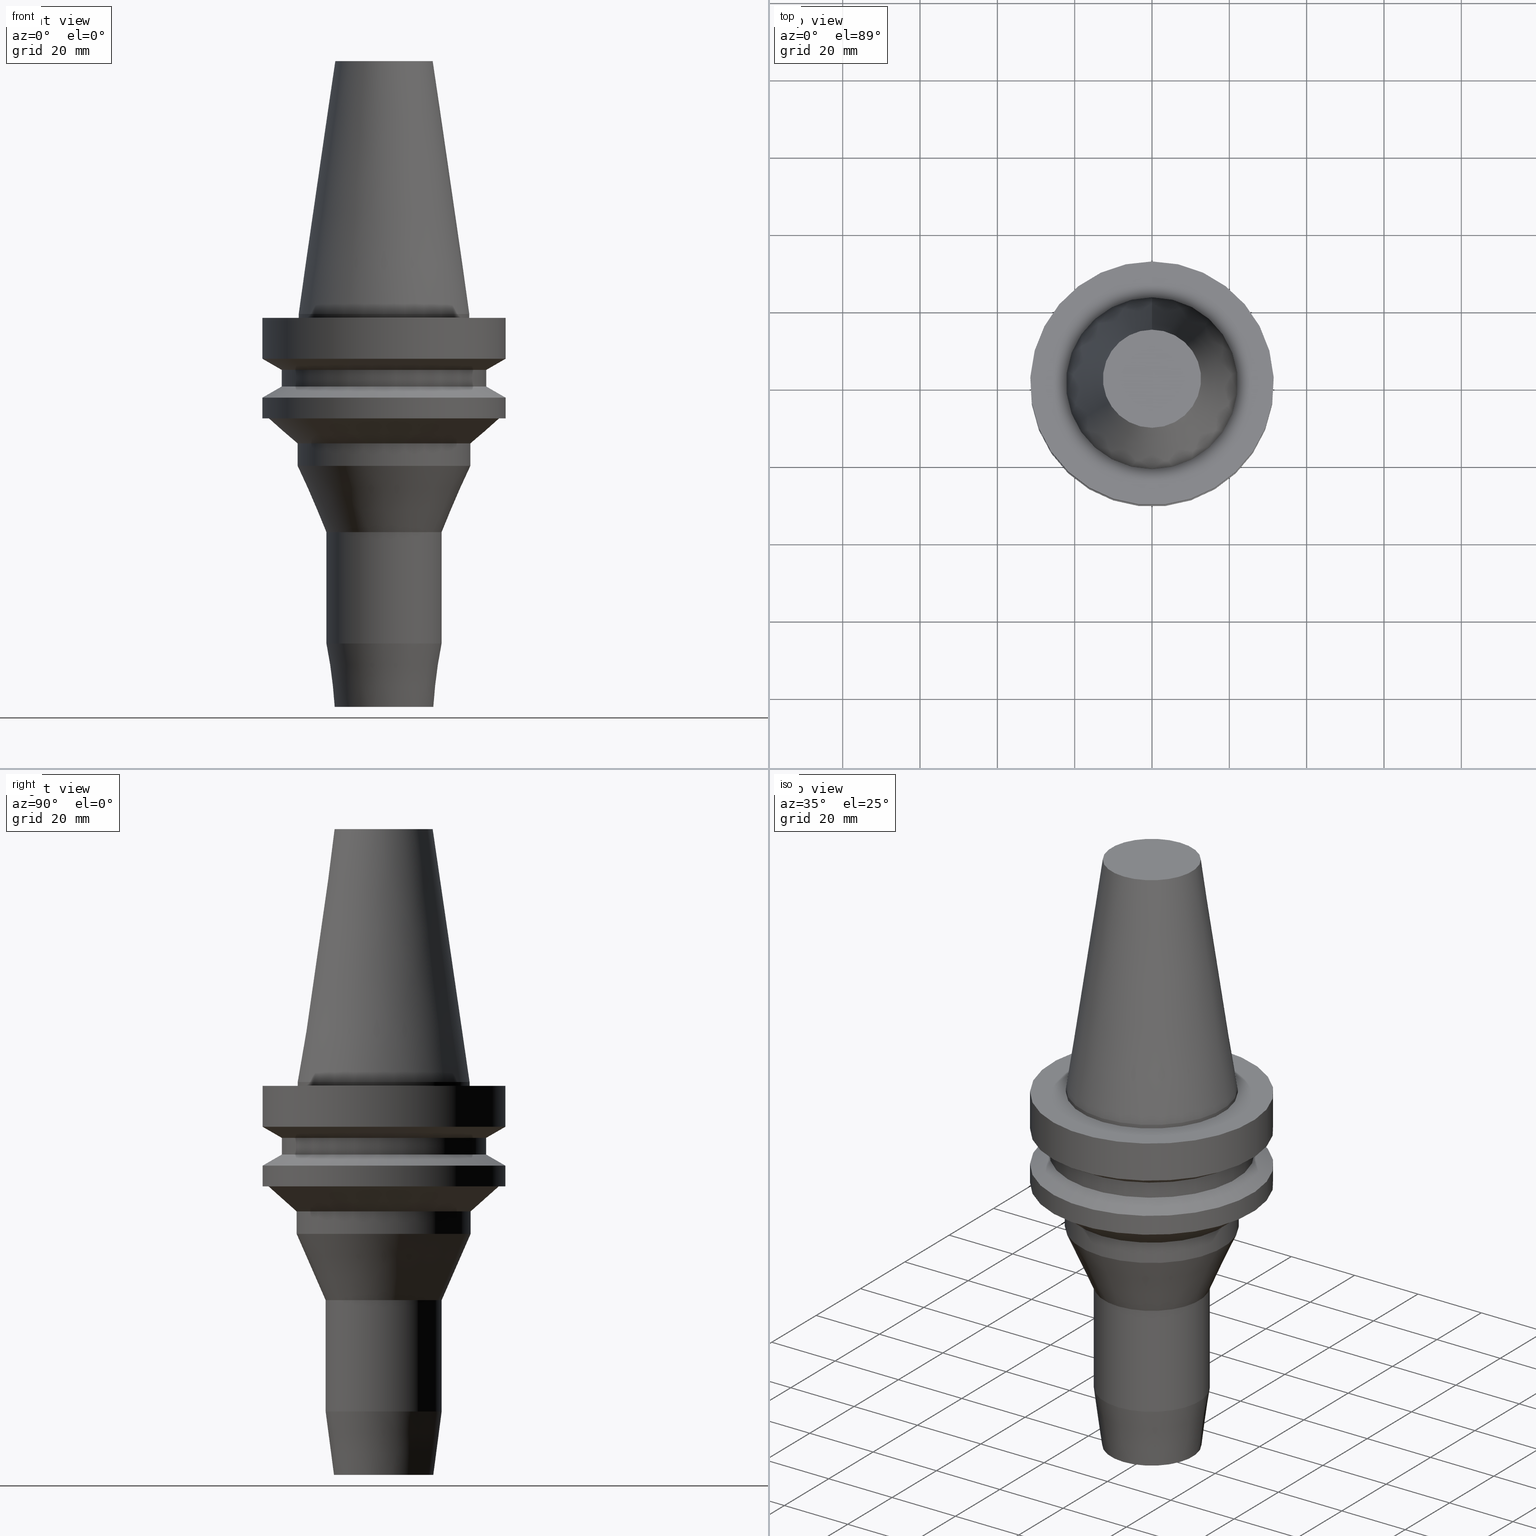
[diagram: canonical four-view strip — front | top / right | iso, engineering-drawing reading convention]
A machine part, canonical four-view strip (front | top / right | iso — engineering-drawing reading convention). The complete STEP part file that produces these views, byte-faithful:
ISO-10303-21;
HEADER;
FILE_DESCRIPTION((''),'1');
FILE_NAME('V:/90_\X2\53D65F9730C730FC30BF\X0\/00_\X2\6DE18DEF30C730FC30BF\X0\/ALL/BBT-BKUS\X2\FF76FF80FF9BFF78FF9E752852A05DE556F3\X0\201801/BBT40-HDC/BBT40-HDC.375-4.stp','2018-02-07T04:55:41',(''),(''),'Spatial Interop R21 SP3','Kubotek KeyCreator 2011 V10.0.2 (22737)',' ');
FILE_SCHEMA(('automotive_design'));
ENDSEC;
DATA;
#1=MECHANICAL_DESIGN_GEOMETRIC_PRESENTATION_REPRESENTATION(' ',(#10,#11,#12,#13,#14,#15,#16,#17,#18,#19,#20,#21,#22,#23,#24,#25,#26,#27,#28,#29,#30,#31,#32,#33,#34,#35,#36,#37,#38,#39,#40,#41),#6);
#2=PRODUCT_DEFINITION_CONTEXT('',#42,'design');
#3=APPLICATION_PROTOCOL_DEFINITION('INTERNATIONAL STANDARD','automotive_design',1994,#42);
#4=PRODUCT_CATEGORY_RELATIONSHIP('NONE','NONE',#43,#44);
#5=SHAPE_DEFINITION_REPRESENTATION(#45,#46);
#6= (GEOMETRIC_REPRESENTATION_CONTEXT(3)GLOBAL_UNCERTAINTY_ASSIGNED_CONTEXT((#49))GLOBAL_UNIT_ASSIGNED_CONTEXT((#51,#52,#53))REPRESENTATION_CONTEXT('NONE','WORKSPACE'));
#10=STYLED_ITEM('',(#55,#56),#57);
#11=STYLED_ITEM('',(#58),#59);
#12=STYLED_ITEM('',(#60,#61),#62);
#13=STYLED_ITEM('',(#63,#64),#65);
#14=STYLED_ITEM('',(#66),#67);
#15=STYLED_ITEM('',(#68),#69);
#16=STYLED_ITEM('',(#70),#71);
#17=STYLED_ITEM('',(#72,#73),#74);
#18=STYLED_ITEM('',(#75,#76),#77);
#19=STYLED_ITEM('',(#78,#79),#80);
#20=STYLED_ITEM('',(#81),#82);
#21=STYLED_ITEM('',(#83,#84),#85);
#22=STYLED_ITEM('',(#86,#87),#88);
#23=STYLED_ITEM('',(#89,#90),#91);
#24=STYLED_ITEM('',(#92),#93);
#25=STYLED_ITEM('',(#94),#95);
#26=STYLED_ITEM('',(#96),#97);
#27=STYLED_ITEM('',(#98),#99);
#28=STYLED_ITEM('',(#100,#101),#102);
#29=STYLED_ITEM('',(#103,#104),#105);
#30=STYLED_ITEM('',(#106),#107);
#31=STYLED_ITEM('',(#108,#109),#110);
#32=STYLED_ITEM('',(#111,#112),#113);
#33=STYLED_ITEM('',(#114),#115);
#34=STYLED_ITEM('',(#116,#117),#118);
#35=STYLED_ITEM('',(#119),#120);
#36=STYLED_ITEM('',(#121,#122),#123);
#37=STYLED_ITEM('',(#124,#125),#126);
#38=STYLED_ITEM('',(#127),#128);
#39=STYLED_ITEM('',(#129,#130),#131);
#40=STYLED_ITEM('',(#132),#133);
#41=STYLED_ITEM('',(#134),#135);
#42=APPLICATION_CONTEXT(' ');
#43=PRODUCT_CATEGORY('part','NONE');
#44=PRODUCT_RELATED_PRODUCT_CATEGORY('detail',' ',(#136));
#45=PRODUCT_DEFINITION_SHAPE('NONE','NONE',#137);
#46=ADVANCED_BREP_SHAPE_REPRESENTATION('Unnamed[1]',(#123,#138),#6);
#49=UNCERTAINTY_MEASURE_WITH_UNIT(LENGTH_MEASURE(1.0E-006),#51,'','');
#51= (CONVERSION_BASED_UNIT('MILLIMETRE',#141)LENGTH_UNIT()NAMED_UNIT(#144));
#52= (NAMED_UNIT(#146)PLANE_ANGLE_UNIT()SI_UNIT($,.RADIAN.));
#53= (NAMED_UNIT(#146)SOLID_ANGLE_UNIT()SI_UNIT($,.STERADIAN.));
#55=PRESENTATION_STYLE_ASSIGNMENT((#152));
#56=PRESENTATION_STYLE_ASSIGNMENT((#153));
#57=ADVANCED_FACE('Unnamed[1]',(#154,#155),#156,.T.);
#58=PRESENTATION_STYLE_ASSIGNMENT((#157));
#59=EDGE_CURVE('Unnamed[1]',#158,#158,#159,.T.);
#60=PRESENTATION_STYLE_ASSIGNMENT((#160));
#61=PRESENTATION_STYLE_ASSIGNMENT((#161));
#62=ADVANCED_FACE('Unnamed[1]',(#162,#163),#164,.T.);
#63=PRESENTATION_STYLE_ASSIGNMENT((#165));
#64=PRESENTATION_STYLE_ASSIGNMENT((#166));
#65=ADVANCED_FACE('Unnamed[1]',(#167,#168),#169,.T.);
#66=PRESENTATION_STYLE_ASSIGNMENT((#170));
#67=EDGE_CURVE('Unnamed[1]',#171,#171,#172,.T.);
#68=PRESENTATION_STYLE_ASSIGNMENT((#173));
#69=EDGE_CURVE('Unnamed[1]',#174,#174,#175,.T.);
#70=PRESENTATION_STYLE_ASSIGNMENT((#176));
#71=EDGE_CURVE('Unnamed[1]',#177,#177,#178,.T.);
#72=PRESENTATION_STYLE_ASSIGNMENT((#179));
#73=PRESENTATION_STYLE_ASSIGNMENT((#180));
#74=ADVANCED_FACE('Unnamed[1]',(#181,#182),#183,.T.);
#75=PRESENTATION_STYLE_ASSIGNMENT((#184));
#76=PRESENTATION_STYLE_ASSIGNMENT((#185));
#77=ADVANCED_FACE('Unnamed[1]',(#186,#187),#188,.T.);
#78=PRESENTATION_STYLE_ASSIGNMENT((#189));
#79=PRESENTATION_STYLE_ASSIGNMENT((#190));
#80=ADVANCED_FACE('Unnamed[1]',(#191,#192),#193,.T.);
#81=PRESENTATION_STYLE_ASSIGNMENT((#194));
#82=EDGE_CURVE('Unnamed[1]',#195,#195,#196,.T.);
#83=PRESENTATION_STYLE_ASSIGNMENT((#197));
#84=PRESENTATION_STYLE_ASSIGNMENT((#198));
#85=ADVANCED_FACE('Unnamed[1]',(#199,#200),#201,.T.);
#86=PRESENTATION_STYLE_ASSIGNMENT((#202));
#87=PRESENTATION_STYLE_ASSIGNMENT((#203));
#88=ADVANCED_FACE('Unnamed[1]',(#204,#205),#206,.T.);
#89=PRESENTATION_STYLE_ASSIGNMENT((#207));
#90=PRESENTATION_STYLE_ASSIGNMENT((#208));
#91=ADVANCED_FACE('Unnamed[1]',(#209,#210),#211,.T.);
#92=PRESENTATION_STYLE_ASSIGNMENT((#212));
#93=EDGE_CURVE('Unnamed[1]',#213,#213,#214,.T.);
#94=PRESENTATION_STYLE_ASSIGNMENT((#215));
#95=EDGE_CURVE('Unnamed[1]',#216,#216,#217,.T.);
#96=PRESENTATION_STYLE_ASSIGNMENT((#218));
#97=EDGE_CURVE('Unnamed[1]',#219,#219,#220,.T.);
#98=PRESENTATION_STYLE_ASSIGNMENT((#221));
#99=EDGE_CURVE('Unnamed[1]',#222,#222,#223,.T.);
#100=PRESENTATION_STYLE_ASSIGNMENT((#224));
#101=PRESENTATION_STYLE_ASSIGNMENT((#225));
#102=ADVANCED_FACE('Unnamed[1]',(#226,#227),#228,.T.);
#103=PRESENTATION_STYLE_ASSIGNMENT((#229));
#104=PRESENTATION_STYLE_ASSIGNMENT((#230));
#105=ADVANCED_FACE('Unnamed[1]',(#231),#232,.T.);
#106=PRESENTATION_STYLE_ASSIGNMENT((#233));
#107=EDGE_CURVE('Unnamed[1]',#234,#234,#235,.T.);
#108=PRESENTATION_STYLE_ASSIGNMENT((#236));
#109=PRESENTATION_STYLE_ASSIGNMENT((#237));
#110=ADVANCED_FACE('Unnamed[1]',(#238,#239),#240,.T.);
#111=PRESENTATION_STYLE_ASSIGNMENT((#241));
#112=PRESENTATION_STYLE_ASSIGNMENT((#242));
#113=ADVANCED_FACE('Unnamed[1]',(#243,#244),#245,.T.);
#114=PRESENTATION_STYLE_ASSIGNMENT((#246));
#115=EDGE_CURVE('Unnamed[1]',#247,#247,#248,.T.);
#116=PRESENTATION_STYLE_ASSIGNMENT((#249));
#117=PRESENTATION_STYLE_ASSIGNMENT((#250));
#118=ADVANCED_FACE('Unnamed[1]',(#251),#252,.T.);
#119=PRESENTATION_STYLE_ASSIGNMENT((#253));
#120=EDGE_CURVE('Unnamed[1]',#254,#254,#255,.T.);
#121=PRESENTATION_STYLE_ASSIGNMENT((#256));
#122=PRESENTATION_STYLE_ASSIGNMENT((#257));
#123=MANIFOLD_SOLID_BREP('Unnamed[1]',#258);
#124=PRESENTATION_STYLE_ASSIGNMENT((#259));
#125=PRESENTATION_STYLE_ASSIGNMENT((#260));
#126=ADVANCED_FACE('Unnamed[1]',(#261,#262),#263,.T.);
#127=PRESENTATION_STYLE_ASSIGNMENT((#264));
#128=EDGE_CURVE('Unnamed[1]',#265,#265,#266,.T.);
#129=PRESENTATION_STYLE_ASSIGNMENT((#267));
#130=PRESENTATION_STYLE_ASSIGNMENT((#268));
#131=ADVANCED_FACE('Unnamed[1]',(#269,#270),#271,.T.);
#132=PRESENTATION_STYLE_ASSIGNMENT((#272));
#133=EDGE_CURVE('Unnamed[1]',#273,#273,#274,.T.);
#134=PRESENTATION_STYLE_ASSIGNMENT((#275));
#135=EDGE_CURVE('Unnamed[1]',#276,#276,#277,.T.);
#136=PRODUCT('Unnamed[1]','Unnamed[1]','PART-Unnamed[1]-DESC',(#278));
#137=PRODUCT_DEFINITION('NONE','NONE',#279,#2);
#138=AXIS2_PLACEMENT_3D('',#280,#281,#282);
#141=LENGTH_MEASURE_WITH_UNIT(LENGTH_MEASURE(1.0),#283);
#144=DIMENSIONAL_EXPONENTS(1.0,0.0,0.0,0.0,0.0,0.0,0.0);
#146=DIMENSIONAL_EXPONENTS(0.0,0.0,0.0,0.0,0.0,0.0,0.0);
#152=SURFACE_STYLE_USAGE(.BOTH.,#284);
#153=CURVE_STYLE('',#285,POSITIVE_LENGTH_MEASURE(1000.0),#286);
#154=FACE_OUTER_BOUND('',#287,.T.);
#155=FACE_BOUND('',#288,.T.);
#156=PLANE('',#289);
#157=CURVE_STYLE('',#290,POSITIVE_LENGTH_MEASURE(1000.0),#291);
#158=VERTEX_POINT('',#292);
#159=CIRCLE('',#293,22.4999999999997);
#160=SURFACE_STYLE_USAGE(.BOTH.,#294);
#161=CURVE_STYLE('',#295,POSITIVE_LENGTH_MEASURE(1000.0),#296);
#162=FACE_BOUND('',#297,.T.);
#163=FACE_OUTER_BOUND('',#298,.T.);
#164=PLANE('',#299);
#165=SURFACE_STYLE_USAGE(.BOTH.,#300);
#166=CURVE_STYLE('',#301,POSITIVE_LENGTH_MEASURE(1000.0),#302);
#167=FACE_BOUND('',#303,.T.);
#168=FACE_BOUND('',#304,.T.);
#169=CYLINDRICAL_SURFACE('',#305,22.225);
#170=CURVE_STYLE('',#306,POSITIVE_LENGTH_MEASURE(1000.0),#307);
#171=VERTEX_POINT('',#308);
#172=CIRCLE('',#309,31.5000000000006);
#173=CURVE_STYLE('',#310,POSITIVE_LENGTH_MEASURE(1000.0),#311);
#174=VERTEX_POINT('',#312);
#175=CIRCLE('',#313,29.7522390310039);
#176=CURVE_STYLE('',#314,POSITIVE_LENGTH_MEASURE(1000.0),#315);
#177=VERTEX_POINT('',#316);
#178=CIRCLE('',#317,31.5000000000003);
#179=SURFACE_STYLE_USAGE(.BOTH.,#318);
#180=CURVE_STYLE('',#319,POSITIVE_LENGTH_MEASURE(1000.0),#320);
#181=FACE_BOUND('',#321,.T.);
#182=FACE_BOUND('',#322,.T.);
#183=CONICAL_SURFACE('',#323,17.45625,0.144812498238936);
#184=SURFACE_STYLE_USAGE(.BOTH.,#324);
#185=CURVE_STYLE('',#325,POSITIVE_LENGTH_MEASURE(1000.0),#326);
#186=FACE_BOUND('',#327,.T.);
#187=FACE_BOUND('',#328,.T.);
#188=CONICAL_SURFACE('',#329,18.7500000000013,0.412224173269459);
#189=SURFACE_STYLE_USAGE(.BOTH.,#330);
#190=CURVE_STYLE('',#331,POSITIVE_LENGTH_MEASURE(1000.0),#332);
#191=FACE_BOUND('',#333,.T.);
#192=FACE_BOUND('',#334,.T.);
#193=CONICAL_SURFACE('',#335,28.9999999999998,1.04719755119657);
#194=CURVE_STYLE('',#336,POSITIVE_LENGTH_MEASURE(1000.0),#337);
#195=VERTEX_POINT('',#338);
#196=CIRCLE('',#339,22.225);
#197=SURFACE_STYLE_USAGE(.BOTH.,#340);
#198=CURVE_STYLE('',#341,POSITIVE_LENGTH_MEASURE(1000.0),#342);
#199=FACE_BOUND('',#343,.T.);
#200=FACE_BOUND('',#344,.T.);
#201=CYLINDRICAL_SURFACE('',#345,26.4999999999997);
#202=SURFACE_STYLE_USAGE(.BOTH.,#346);
#203=CURVE_STYLE('',#347,POSITIVE_LENGTH_MEASURE(1000.0),#348);
#204=FACE_BOUND('',#349,.T.);
#205=FACE_BOUND('',#350,.T.);
#206=CONICAL_SURFACE('',#351,26.1261195155019,0.842867621947739);
#207=SURFACE_STYLE_USAGE(.BOTH.,#352);
#208=CURVE_STYLE('',#353,POSITIVE_LENGTH_MEASURE(1000.0),#354);
#209=FACE_BOUND('',#355,.T.);
#210=FACE_BOUND('',#356,.T.);
#211=CYLINDRICAL_SURFACE('',#357,31.5000000000005);
#212=CURVE_STYLE('',#358,POSITIVE_LENGTH_MEASURE(1000.0),#359);
#213=VERTEX_POINT('',#360);
#214=CIRCLE('',#361,15.0000000000028);
#215=CURVE_STYLE('',#362,POSITIVE_LENGTH_MEASURE(1000.0),#363);
#216=VERTEX_POINT('',#364);
#217=CIRCLE('',#365,12.8453653554241);
#218=CURVE_STYLE('',#366,POSITIVE_LENGTH_MEASURE(1000.0),#367);
#219=VERTEX_POINT('',#368);
#220=CIRCLE('',#369,26.4999999999994);
#221=CURVE_STYLE('',#370,POSITIVE_LENGTH_MEASURE(1000.0),#371);
#222=VERTEX_POINT('',#372);
#223=CIRCLE('',#373,31.5000000000003);
#224=SURFACE_STYLE_USAGE(.BOTH.,#374);
#225=CURVE_STYLE('',#375,POSITIVE_LENGTH_MEASURE(1000.0),#376);
#226=FACE_BOUND('',#377,.T.);
#227=FACE_BOUND('',#378,.T.);
#228=CYLINDRICAL_SURFACE('',#379,22.4999999999998);
#229=SURFACE_STYLE_USAGE(.BOTH.,#380);
#230=CURVE_STYLE('',#381,POSITIVE_LENGTH_MEASURE(1000.0),#382);
#231=FACE_OUTER_BOUND('',#383,.T.);
#232=PLANE('',#384);
#233=CURVE_STYLE('',#385,POSITIVE_LENGTH_MEASURE(1000.0),#386);
#234=VERTEX_POINT('',#387);
#235=CIRCLE('',#388,26.5);
#236=SURFACE_STYLE_USAGE(.BOTH.,#389);
#237=CURVE_STYLE('',#390,POSITIVE_LENGTH_MEASURE(1000.0),#391);
#238=FACE_BOUND('',#392,.T.);
#239=FACE_BOUND('',#393,.T.);
#240=CYLINDRICAL_SURFACE('',#394,15.0000000000008);
#241=SURFACE_STYLE_USAGE(.BOTH.,#395);
#242=CURVE_STYLE('',#396,POSITIVE_LENGTH_MEASURE(1000.0),#397);
#243=FACE_BOUND('',#398,.T.);
#244=FACE_BOUND('',#399,.T.);
#245=CONICAL_SURFACE('',#400,29.0000000000003,1.04719755119651);
#246=CURVE_STYLE('',#401,POSITIVE_LENGTH_MEASURE(1000.0),#402);
#247=VERTEX_POINT('',#403);
#248=CIRCLE('',#404,14.9999999999988);
#249=SURFACE_STYLE_USAGE(.BOTH.,#405);
#250=CURVE_STYLE('',#406,POSITIVE_LENGTH_MEASURE(1000.0),#407);
#251=FACE_OUTER_BOUND('',#408,.T.);
#252=PLANE('',#409);
#253=CURVE_STYLE('',#410,POSITIVE_LENGTH_MEASURE(1000.0),#411);
#254=VERTEX_POINT('',#412);
#255=CIRCLE('',#413,31.4999999999996);
#256=SURFACE_STYLE_USAGE(.BOTH.,#414);
#257=CURVE_STYLE('',#415,POSITIVE_LENGTH_MEASURE(1000.0),#416);
#258=CLOSED_SHELL('',(#105,#74,#65,#57,#131,#80,#85,#113,#91,#62,#88,#102,#77,#110,#126,#118));
#259=SURFACE_STYLE_USAGE(.BOTH.,#417);
#260=CURVE_STYLE('',#418,POSITIVE_LENGTH_MEASURE(1000.0),#419);
#261=FACE_BOUND('',#420,.T.);
#262=FACE_BOUND('',#421,.T.);
#263=CONICAL_SURFACE('',#422,13.9226826777114,0.130899693901765);
#264=CURVE_STYLE('',#423,POSITIVE_LENGTH_MEASURE(1000.0),#424);
#265=VERTEX_POINT('',#425);
#266=CIRCLE('',#426,12.6875000000001);
#267=SURFACE_STYLE_USAGE(.BOTH.,#427);
#268=CURVE_STYLE('',#428,POSITIVE_LENGTH_MEASURE(1000.0),#429);
#269=FACE_BOUND('',#430,.T.);
#270=FACE_BOUND('',#431,.T.);
#271=CYLINDRICAL_SURFACE('',#432,31.5);
#272=CURVE_STYLE('',#433,POSITIVE_LENGTH_MEASURE(1000.0),#434);
#273=VERTEX_POINT('',#435);
#274=CIRCLE('',#436,22.225);
#275=CURVE_STYLE('',#437,POSITIVE_LENGTH_MEASURE(1000.0),#438);
#276=VERTEX_POINT('',#439);
#277=CIRCLE('',#440,22.4999999999998);
#278=PRODUCT_CONTEXT('',#42,'mechanical');
#279=PRODUCT_DEFINITION_FORMATION_WITH_SPECIFIED_SOURCE(' ','NONE',#136,.NOT_KNOWN.);
#280=CARTESIAN_POINT('',(0.0,0.0,0.0));
#281=DIRECTION('',(0.0,0.0,1.0));
#282=DIRECTION('',(1.0,0.0,0.0));
#283= (NAMED_UNIT(#144)LENGTH_UNIT()SI_UNIT(.MILLI.,.METRE.));
#284=SURFACE_SIDE_STYLE('',(#442));
#285=DRAUGHTING_PRE_DEFINED_CURVE_FONT('continuous');
#286=COLOUR_RGB('',0.0,1.0,0.0);
#287=EDGE_LOOP('',(#443));
#288=EDGE_LOOP('',(#444));
#289=AXIS2_PLACEMENT_3D('',#445,#446,#447);
#290=DRAUGHTING_PRE_DEFINED_CURVE_FONT('continuous');
#291=COLOUR_RGB('',0.0,1.0,0.0);
#292=CARTESIAN_POINT('',(2.40459052005005E-015,22.4999999999998,-39.2699433293619));
#293=AXIS2_PLACEMENT_3D('',#448,#449,#450);
#294=SURFACE_SIDE_STYLE('',(#451));
#295=DRAUGHTING_PRE_DEFINED_CURVE_FONT('continuous');
#296=COLOUR_RGB('',0.0,1.0,0.0);
#297=EDGE_LOOP('',(#452));
#298=EDGE_LOOP('',(#453));
#299=AXIS2_PLACEMENT_3D('',#454,#455,#456);
#300=SURFACE_SIDE_STYLE('',(#457));
#301=DRAUGHTING_PRE_DEFINED_CURVE_FONT('continuous');
#302=COLOUR_RGB('',0.0,1.0,0.0);
#303=EDGE_LOOP('',(#458));
#304=EDGE_LOOP('',(#459));
#305=AXIS2_PLACEMENT_3D('',#460,#461,#462);
#306=DRAUGHTING_PRE_DEFINED_CURVE_FONT('continuous');
#307=COLOUR_RGB('',0.0,1.0,0.0);
#308=CARTESIAN_POINT('',(1.32473071268174E-015,31.5000000000007,-21.6344943473346));
#309=AXIS2_PLACEMENT_3D('',#463,#464,#465);
#310=DRAUGHTING_PRE_DEFINED_CURVE_FONT('continuous');
#311=COLOUR_RGB('',0.0,1.0,0.0);
#312=CARTESIAN_POINT('',(1.65327317884891E-015,29.752239031004,-26.9999999999998));
#313=AXIS2_PLACEMENT_3D('',#466,#467,#468);
#314=DRAUGHTING_PRE_DEFINED_CURVE_FONT('continuous');
#315=COLOUR_RGB('',0.0,1.0,0.0);
#316=CARTESIAN_POINT('',(1.65327317884891E-015,31.5000000000004,-26.9999999999998));
#317=AXIS2_PLACEMENT_3D('',#469,#470,#471);
#318=SURFACE_SIDE_STYLE('',(#472));
#319=DRAUGHTING_PRE_DEFINED_CURVE_FONT('continuous');
#320=COLOUR_RGB('',0.0,1.0,0.0);
#321=EDGE_LOOP('',(#473));
#322=EDGE_LOOP('',(#474));
#323=AXIS2_PLACEMENT_3D('',#475,#476,#477);
#324=SURFACE_SIDE_STYLE('',(#478));
#325=DRAUGHTING_PRE_DEFINED_CURVE_FONT('continuous');
#326=COLOUR_RGB('',0.0,1.0,0.0);
#327=EDGE_LOOP('',(#479));
#328=EDGE_LOOP('',(#480));
#329=AXIS2_PLACEMENT_3D('',#481,#482,#483);
#330=SURFACE_SIDE_STYLE('',(#484));
#331=DRAUGHTING_PRE_DEFINED_CURVE_FONT('continuous');
#332=COLOUR_RGB('',0.0,1.0,0.0);
#333=EDGE_LOOP('',(#485));
#334=EDGE_LOOP('',(#486));
#335=AXIS2_PLACEMENT_3D('',#487,#488,#489);
#336=DRAUGHTING_PRE_DEFINED_CURVE_FONT('continuous');
#337=COLOUR_RGB('',0.0,1.0,0.0);
#338=CARTESIAN_POINT('',(1.71319921032766E-029,22.2250000000001,-2.8153873565375E-013));
#339=AXIS2_PLACEMENT_3D('',#490,#491,#492);
#340=SURFACE_SIDE_STYLE('',(#493));
#341=DRAUGHTING_PRE_DEFINED_CURVE_FONT('continuous');
#342=COLOUR_RGB('',0.0,1.0,0.0);
#343=EDGE_LOOP('',(#494));
#344=EDGE_LOOP('',(#495));
#345=AXIS2_PLACEMENT_3D('',#496,#497,#498);
#346=SURFACE_SIDE_STYLE('',(#499));
#347=DRAUGHTING_PRE_DEFINED_CURVE_FONT('continuous');
#348=COLOUR_RGB('',0.0,1.0,0.0);
#349=EDGE_LOOP('',(#500));
#350=EDGE_LOOP('',(#501));
#351=AXIS2_PLACEMENT_3D('',#502,#503,#504);
#352=SURFACE_SIDE_STYLE('',(#505));
#353=DRAUGHTING_PRE_DEFINED_CURVE_FONT('continuous');
#354=COLOUR_RGB('',0.0,1.0,0.0);
#355=EDGE_LOOP('',(#506));
#356=EDGE_LOOP('',(#507));
#357=AXIS2_PLACEMENT_3D('',#508,#509,#510);
#358=DRAUGHTING_PRE_DEFINED_CURVE_FONT('continuous');
#359=COLOUR_RGB('',0.0,1.0,0.0);
#360=CARTESIAN_POINT('',(3.45482046069532E-015,15.0000000000029,-56.4214998659319));
#361=AXIS2_PLACEMENT_3D('',#511,#512,#513);
#362=DRAUGHTING_PRE_DEFINED_CURVE_FONT('continuous');
#363=COLOUR_RGB('',0.0,1.0,0.0);
#364=CARTESIAN_POINT('',(6.22120573966481E-015,12.8453653554241,-101.599999999939));
#365=AXIS2_PLACEMENT_3D('',#514,#515,#516);
#366=DRAUGHTING_PRE_DEFINED_CURVE_FONT('continuous');
#367=COLOUR_RGB('',0.0,1.0,0.0);
#368=CARTESIAN_POINT('',(8.8494551369045E-016,26.4999999999995,-14.4522569986152));
#369=AXIS2_PLACEMENT_3D('',#517,#518,#519);
#370=DRAUGHTING_PRE_DEFINED_CURVE_FONT('continuous');
#371=COLOUR_RGB('',0.0,1.0,0.0);
#372=CARTESIAN_POINT('',(7.08182973902924E-016,31.5000000000004,-11.5655056526664));
#373=AXIS2_PLACEMENT_3D('',#520,#521,#522);
#374=SURFACE_SIDE_STYLE('',(#523));
#375=DRAUGHTING_PRE_DEFINED_CURVE_FONT('continuous');
#376=COLOUR_RGB('',0.0,1.0,0.0);
#377=EDGE_LOOP('',(#524));
#378=EDGE_LOOP('',(#525));
#379=AXIS2_PLACEMENT_3D('',#526,#527,#528);
#380=SURFACE_SIDE_STYLE('',(#529));
#381=DRAUGHTING_PRE_DEFINED_CURVE_FONT('continuous');
#382=COLOUR_RGB('',0.0,1.0,0.0);
#383=EDGE_LOOP('',(#530));
#384=AXIS2_PLACEMENT_3D('',#531,#532,#533);
#385=DRAUGHTING_PRE_DEFINED_CURVE_FONT('continuous');
#386=COLOUR_RGB('',0.0,1.0,0.0);
#387=CARTESIAN_POINT('',(1.1479681728942E-015,26.5,-18.7477430013855));
#388=AXIS2_PLACEMENT_3D('',#534,#535,#536);
#389=SURFACE_SIDE_STYLE('',(#537));
#390=DRAUGHTING_PRE_DEFINED_CURVE_FONT('continuous');
#391=COLOUR_RGB('',0.0,1.0,0.0);
#392=EDGE_LOOP('',(#538));
#393=EDGE_LOOP('',(#539));
#394=AXIS2_PLACEMENT_3D('',#540,#541,#542);
#395=SURFACE_SIDE_STYLE('',(#543));
#396=DRAUGHTING_PRE_DEFINED_CURVE_FONT('continuous');
#397=COLOUR_RGB('',0.0,1.0,0.0);
#398=EDGE_LOOP('',(#544));
#399=EDGE_LOOP('',(#545));
#400=AXIS2_PLACEMENT_3D('',#546,#547,#548);
#401=DRAUGHTING_PRE_DEFINED_CURVE_FONT('continuous');
#402=COLOUR_RGB('',0.0,1.0,0.0);
#403=CARTESIAN_POINT('',(5.21907267378275E-015,14.9999999999988,-85.2339250372674));
#404=AXIS2_PLACEMENT_3D('',#549,#550,#551);
#405=SURFACE_SIDE_STYLE('',(#552));
#406=DRAUGHTING_PRE_DEFINED_CURVE_FONT('continuous');
#407=COLOUR_RGB('',0.0,1.0,0.0);
#408=EDGE_LOOP('',(#553));
#409=AXIS2_PLACEMENT_3D('',#554,#555,#556);
#410=DRAUGHTING_PRE_DEFINED_CURVE_FONT('continuous');
#411=COLOUR_RGB('',0.0,1.0,0.0);
#412=CARTESIAN_POINT('',(6.12323399573568E-017,31.4999999999997,-0.999999999999825));
#413=AXIS2_PLACEMENT_3D('',#557,#558,#559);
#414=SURFACE_SIDE_STYLE('',(#560));
#415=DRAUGHTING_PRE_DEFINED_CURVE_FONT('continuous');
#416=COLOUR_RGB('',0.0,1.0,0.0);
#417=SURFACE_SIDE_STYLE('',(#561));
#418=DRAUGHTING_PRE_DEFINED_CURVE_FONT('continuous');
#419=COLOUR_RGB('',0.0,1.0,0.0);
#420=EDGE_LOOP('',(#562));
#421=EDGE_LOOP('',(#563));
#422=AXIS2_PLACEMENT_3D('',#564,#565,#566);
#423=DRAUGHTING_PRE_DEFINED_CURVE_FONT('continuous');
#424=COLOUR_RGB('',0.0,1.0,0.0);
#425=CARTESIAN_POINT('',(-4.00459503321185E-015,12.6875000000002,65.4000000000001));
#426=AXIS2_PLACEMENT_3D('',#567,#568,#569);
#427=SURFACE_SIDE_STYLE('',(#570));
#428=DRAUGHTING_PRE_DEFINED_CURVE_FONT('continuous');
#429=COLOUR_RGB('',0.0,1.0,0.0);
#430=EDGE_LOOP('',(#571));
#431=EDGE_LOOP('',(#572));
#432=AXIS2_PLACEMENT_3D('',#573,#574,#575);
#433=DRAUGHTING_PRE_DEFINED_CURVE_FONT('continuous');
#434=COLOUR_RGB('',0.0,1.0,0.0);
#435=CARTESIAN_POINT('',(6.12323399573622E-017,22.2250000000001,-0.999999999999912));
#436=AXIS2_PLACEMENT_3D('',#576,#577,#578);
#437=DRAUGHTING_PRE_DEFINED_CURVE_FONT('continuous');
#438=COLOUR_RGB('',0.0,1.0,0.0);
#439=CARTESIAN_POINT('',(2.04902721681722E-015,22.4999999999999,-33.4631539190537));
#440=AXIS2_PLACEMENT_3D('',#579,#580,#581);
#442=SURFACE_STYLE_FILL_AREA(#582);
#443=ORIENTED_EDGE('',*,*,#120,.F.);
#444=ORIENTED_EDGE('',*,*,#133,.T.);
#445=CARTESIAN_POINT('',(6.12323399573595E-017,26.8624999999999,-0.999999999999869));
#446=DIRECTION('',(-6.12323399573677E-017,-9.35138060429241E-015,1.0));
#447=DIRECTION('',(5.77434068963536E-031,-1.0,-9.35138060429241E-015));
#448=CARTESIAN_POINT('',(2.40459052005005E-015,7.46146081221668E-014,-39.2699433293619));
#449=DIRECTION('',(6.12323399573677E-017,-2.41671098803277E-017,-1.0));
#450=DIRECTION('',(-3.34734404278848E-033,1.0,-2.41671098803277E-017));
#451=SURFACE_STYLE_FILL_AREA(#583);
#452=ORIENTED_EDGE('',*,*,#69,.F.);
#453=ORIENTED_EDGE('',*,*,#71,.T.);
#454=CARTESIAN_POINT('',(1.65327317884891E-015,30.6261195155022,-26.9999999999998));
#455=DIRECTION('',(6.12323399573677E-017,6.22063326558915E-015,-1.0));
#456=DIRECTION('',(-3.85731083599434E-031,1.0,6.22063326558915E-015));
#457=SURFACE_STYLE_FILL_AREA(#584);
#458=ORIENTED_EDGE('',*,*,#133,.F.);
#459=ORIENTED_EDGE('',*,*,#82,.T.);
#460=CARTESIAN_POINT('',(3.06161699786899E-017,7.55515656026638E-014,-0.500000000000099));
#461=DIRECTION('',(6.12323399573677E-017,-2.41671098804196E-017,-1.0));
#462=DIRECTION('',(-3.34734404278898E-033,1.0,-2.41671098804196E-017));
#463=CARTESIAN_POINT('',(1.32473071268174E-015,7.50408059555054E-014,-21.6344943473346));
#464=DIRECTION('',(6.12323399573677E-017,-2.41671098804295E-017,-1.0));
#465=DIRECTION('',(-3.34734404277357E-033,1.0,-2.41671098804295E-017));
#466=CARTESIAN_POINT('',(1.65327317884891E-015,7.49111371908336E-014,-26.9999999999998));
#467=DIRECTION('',(6.12323399573677E-017,-2.41671098804014E-017,-1.0));
#468=DIRECTION('',(-3.34734404278074E-033,1.0,-2.41671098804014E-017));
#469=CARTESIAN_POINT('',(1.65327317884891E-015,7.49111371908336E-014,-26.9999999999998));
#470=DIRECTION('',(6.12323399573677E-017,-2.41671098804298E-017,-1.0));
#471=DIRECTION('',(-3.34734404278499E-033,1.0,-2.41671098804298E-017));
#472=SURFACE_STYLE_FILL_AREA(#585);
#473=ORIENTED_EDGE('',*,*,#82,.F.);
#474=ORIENTED_EDGE('',*,*,#128,.T.);
#475=CARTESIAN_POINT('',(-2.00229751660592E-015,7.63539136506926E-014,32.6999999999999));
#476=DIRECTION('',(6.12323399573677E-017,-2.41671098803783E-017,-1.0));
#477=DIRECTION('',(-3.34734404278211E-033,1.0,-2.41671098803783E-017));
#478=SURFACE_STYLE_FILL_AREA(#586);
#479=ORIENTED_EDGE('',*,*,#93,.F.);
#480=ORIENTED_EDGE('',*,*,#59,.T.);
#481=CARTESIAN_POINT('',(2.92970549037268E-015,7.44073563464474E-014,-47.8457215976469));
#482=DIRECTION('',(-6.12323399573677E-017,2.41671098803258E-017,1.0));
#483=DIRECTION('',(-3.34734404278981E-033,1.0,-2.41671098803258E-017));
#484=SURFACE_STYLE_FILL_AREA(#587);
#485=ORIENTED_EDGE('',*,*,#97,.F.);
#486=ORIENTED_EDGE('',*,*,#99,.T.);
#487=CARTESIAN_POINT('',(7.96564243796687E-016,7.52492620931863E-014,-13.0088813256408));
#488=DIRECTION('',(-6.12323399573677E-017,2.41671098804019E-017,1.0));
#489=DIRECTION('',(-3.34734404278956E-033,1.0,-2.41671098804019E-017));
#490=CARTESIAN_POINT('',(1.74032777401202E-029,7.5563649157604E-014,-2.8421709430404E-013));
#491=DIRECTION('',(6.12323399573677E-017,-2.41671098804196E-017,-1.0));
#492=DIRECTION('',(-3.34734404278898E-033,1.0,-2.41671098804196E-017));
#493=SURFACE_STYLE_FILL_AREA(#588);
#494=ORIENTED_EDGE('',*,*,#107,.F.);
#495=ORIENTED_EDGE('',*,*,#97,.T.);
#496=CARTESIAN_POINT('',(1.01645684329232E-015,7.51624751335896E-014,-16.6000000000004));
#497=DIRECTION('',(6.12323399573677E-017,-2.41671098803684E-017,-1.0));
#498=DIRECTION('',(-3.34734404278142E-033,1.0,-2.41671098803684E-017));
#499=SURFACE_STYLE_FILL_AREA(#589);
#500=ORIENTED_EDGE('',*,*,#135,.F.);
#501=ORIENTED_EDGE('',*,*,#69,.T.);
#502=CARTESIAN_POINT('',(1.85115019783307E-015,7.48330393153658E-014,-30.2315769595267));
#503=DIRECTION('',(-6.12323399573677E-017,2.41671098803696E-017,1.0));
#504=DIRECTION('',(-3.34734404278064E-033,1.0,-2.41671098803696E-017));
#505=SURFACE_STYLE_FILL_AREA(#590);
#506=ORIENTED_EDGE('',*,*,#71,.F.);
#507=ORIENTED_EDGE('',*,*,#67,.T.);
#508=CARTESIAN_POINT('',(1.48900194576533E-015,7.49759715731695E-014,-24.3172471736672));
#509=DIRECTION('',(6.12323399573677E-017,-2.41671098804297E-017,-1.0));
#510=DIRECTION('',(-3.34734404278498E-033,1.0,-2.41671098804297E-017));
#511=CARTESIAN_POINT('',(3.45482046069532E-015,7.42001045707279E-014,-56.4214998659319));
#512=DIRECTION('',(6.12323399573677E-017,-2.41671098804306E-017,-1.0));
#513=DIRECTION('',(-3.34734404277984E-033,1.0,-2.41671098804306E-017));
#514=CARTESIAN_POINT('',(6.22120573966481E-015,7.31082707937584E-014,-101.599999999939));
#515=DIRECTION('',(6.12323399573677E-017,-2.41671098803842E-017,-1.0));
#516=DIRECTION('',(-3.34734404279467E-033,1.0,-2.41671098803842E-017));
#517=CARTESIAN_POINT('',(8.8494551369045E-016,7.52143798746989E-014,-14.4522569986152));
#518=DIRECTION('',(6.12323399573677E-017,-2.41671098803687E-017,-1.0));
#519=DIRECTION('',(-3.34734404278822E-033,1.0,-2.41671098803687E-017));
#520=CARTESIAN_POINT('',(7.08182973902924E-016,7.52841443116738E-014,-11.5655056526664));
#521=DIRECTION('',(6.12323399573677E-017,-2.41671098804298E-017,-1.0));
#522=DIRECTION('',(-3.34734404278499E-033,1.0,-2.41671098804298E-017));
#523=SURFACE_STYLE_FILL_AREA(#591);
#524=ORIENTED_EDGE('',*,*,#59,.F.);
#525=ORIENTED_EDGE('',*,*,#135,.T.);
#526=CARTESIAN_POINT('',(2.22680886843363E-015,7.46847747810324E-014,-36.3665486242078));
#527=DIRECTION('',(6.12323399573677E-017,-2.41671098803277E-017,-1.0));
#528=DIRECTION('',(-3.34734404278848E-033,1.0,-2.41671098803277E-017));
#529=SURFACE_STYLE_FILL_AREA(#592);
#530=ORIENTED_EDGE('',*,*,#128,.F.);
#531=CARTESIAN_POINT('',(-4.00459503321185E-015,6.34375000000014,65.4000000000001));
#532=DIRECTION('',(-6.12323399573677E-017,9.97602686800683E-016,1.0));
#533=DIRECTION('',(-5.62583941297938E-032,-1.0,9.97602686800683E-016));
#534=CARTESIAN_POINT('',(1.1479681728942E-015,7.51105703924803E-014,-18.7477430013855));
#535=DIRECTION('',(6.12323399573677E-017,-2.41671098803681E-017,-1.0));
#536=DIRECTION('',(-3.34734404278138E-033,1.0,-2.41671098803681E-017));
#537=SURFACE_STYLE_FILL_AREA(#593);
#538=ORIENTED_EDGE('',*,*,#115,.F.);
#539=ORIENTED_EDGE('',*,*,#93,.T.);
#540=CARTESIAN_POINT('',(4.33694656723903E-015,7.38519480482099E-014,-70.8277124515997));
#541=DIRECTION('',(6.12323399573677E-017,-2.41671098804339E-017,-1.0));
#542=DIRECTION('',(-3.3473440427803E-033,1.0,-2.41671098804339E-017));
#543=SURFACE_STYLE_FILL_AREA(#594);
#544=ORIENTED_EDGE('',*,*,#67,.F.);
#545=ORIENTED_EDGE('',*,*,#107,.T.);
#546=CARTESIAN_POINT('',(1.23634944278797E-015,7.50756881739928E-014,-20.1911186743601));
#547=DIRECTION('',(6.12323399573677E-017,-2.41671098804015E-017,-1.0));
#548=DIRECTION('',(-3.34734404278951E-033,1.0,-2.41671098804015E-017));
#549=CARTESIAN_POINT('',(5.21907267378275E-015,7.35037915256919E-014,-85.2339250372674));
#550=DIRECTION('',(6.12323399573676E-017,-2.41671098804372E-017,-1.0));
#551=DIRECTION('',(-3.34734404279271E-033,1.0,-2.41671098804372E-017));
#552=SURFACE_STYLE_FILL_AREA(#595);
#553=ORIENTED_EDGE('',*,*,#95,.T.);
#554=CARTESIAN_POINT('',(6.22120573966478E-015,6.4226826777121,-101.599999999938));
#555=DIRECTION('',(6.12323399573677E-017,-5.85115468149527E-014,-1.0));
#556=DIRECTION('',(3.57797177327385E-030,1.0,-5.85115468149527E-014));
#557=CARTESIAN_POINT('',(6.12323399573572E-017,7.55394820477236E-014,-0.999999999999829));
#558=DIRECTION('',(6.12323399573677E-017,-2.41671098804303E-017,-1.0));
#559=DIRECTION('',(-3.34734404278507E-033,1.0,-2.41671098804303E-017));
#560=SURFACE_STYLE_FILL_AREA(#596);
#561=SURFACE_STYLE_FILL_AREA(#597);
#562=ORIENTED_EDGE('',*,*,#95,.F.);
#563=ORIENTED_EDGE('',*,*,#115,.T.);
#564=CARTESIAN_POINT('',(5.72013920672378E-015,7.33060311597251E-014,-93.4169625186031));
#565=DIRECTION('',(-6.12323399573677E-017,2.41671098803547E-017,1.0));
#566=DIRECTION('',(-3.34734404278717E-033,1.0,-2.41671098803547E-017));
#567=CARTESIAN_POINT('',(-4.00459503321185E-015,7.71441781437812E-014,65.4000000000001));
#568=DIRECTION('',(6.12323399573677E-017,-2.41671098804333E-017,-1.0));
#569=DIRECTION('',(-3.34734404278421E-033,1.0,-2.41671098804333E-017));
#570=SURFACE_STYLE_FILL_AREA(#598);
#571=ORIENTED_EDGE('',*,*,#99,.F.);
#572=ORIENTED_EDGE('',*,*,#120,.T.);
#573=CARTESIAN_POINT('',(3.84707656930141E-016,7.54118131796987E-014,-6.28275282633309));
#574=DIRECTION('',(6.12323399573677E-017,-2.41671098804301E-017,-1.0));
#575=DIRECTION('',(-3.34734404278503E-033,1.0,-2.41671098804301E-017));
#576=CARTESIAN_POINT('',(6.12323399573624E-017,7.55394820477236E-014,-0.999999999999915));
#577=DIRECTION('',(6.12323399573677E-017,-2.41671098804196E-017,-1.0));
#578=DIRECTION('',(-3.34734404278898E-033,1.0,-2.41671098804196E-017));
#579=CARTESIAN_POINT('',(2.04902721681722E-015,7.4754941439898E-014,-33.4631539190537));
#580=DIRECTION('',(6.12323399573677E-017,-2.41671098803277E-017,-1.0));
#581=DIRECTION('',(-3.34734404278847E-033,1.0,-2.41671098803277E-017));
#582=FILL_AREA_STYLE('',(#599));
#583=FILL_AREA_STYLE('',(#600));
#584=FILL_AREA_STYLE('',(#601));
#585=FILL_AREA_STYLE('',(#602));
#586=FILL_AREA_STYLE('',(#603));
#587=FILL_AREA_STYLE('',(#604));
#588=FILL_AREA_STYLE('',(#605));
#589=FILL_AREA_STYLE('',(#606));
#590=FILL_AREA_STYLE('',(#607));
#591=FILL_AREA_STYLE('',(#608));
#592=FILL_AREA_STYLE('',(#609));
#593=FILL_AREA_STYLE('',(#610));
#594=FILL_AREA_STYLE('',(#611));
#595=FILL_AREA_STYLE('',(#612));
#596=FILL_AREA_STYLE('',(#613));
#597=FILL_AREA_STYLE('',(#614));
#598=FILL_AREA_STYLE('',(#615));
#599=FILL_AREA_STYLE_COLOUR('',#616);
#600=FILL_AREA_STYLE_COLOUR('',#617);
#601=FILL_AREA_STYLE_COLOUR('',#618);
#602=FILL_AREA_STYLE_COLOUR('',#619);
#603=FILL_AREA_STYLE_COLOUR('',#620);
#604=FILL_AREA_STYLE_COLOUR('',#621);
#605=FILL_AREA_STYLE_COLOUR('',#622);
#606=FILL_AREA_STYLE_COLOUR('',#623);
#607=FILL_AREA_STYLE_COLOUR('',#624);
#608=FILL_AREA_STYLE_COLOUR('',#625);
#609=FILL_AREA_STYLE_COLOUR('',#626);
#610=FILL_AREA_STYLE_COLOUR('',#627);
#611=FILL_AREA_STYLE_COLOUR('',#628);
#612=FILL_AREA_STYLE_COLOUR('',#629);
#613=FILL_AREA_STYLE_COLOUR('',#630);
#614=FILL_AREA_STYLE_COLOUR('',#631);
#615=FILL_AREA_STYLE_COLOUR('',#632);
#616=COLOUR_RGB('',0.0,1.0,0.0);
#617=COLOUR_RGB('',0.0,1.0,0.0);
#618=COLOUR_RGB('',0.0,1.0,0.0);
#619=COLOUR_RGB('',0.0,1.0,0.0);
#620=COLOUR_RGB('',0.0,1.0,0.0);
#621=COLOUR_RGB('',0.0,1.0,0.0);
#622=COLOUR_RGB('',0.0,1.0,0.0);
#623=COLOUR_RGB('',0.0,1.0,0.0);
#624=COLOUR_RGB('',0.0,1.0,0.0);
#625=COLOUR_RGB('',0.0,1.0,0.0);
#626=COLOUR_RGB('',0.0,1.0,0.0);
#627=COLOUR_RGB('',0.0,1.0,0.0);
#628=COLOUR_RGB('',0.0,1.0,0.0);
#629=COLOUR_RGB('',0.0,1.0,0.0);
#630=COLOUR_RGB('',0.0,1.0,0.0);
#631=COLOUR_RGB('',0.0,1.0,0.0);
#632=COLOUR_RGB('',0.0,1.0,0.0);
ENDSEC;
END-ISO-10303-21;
